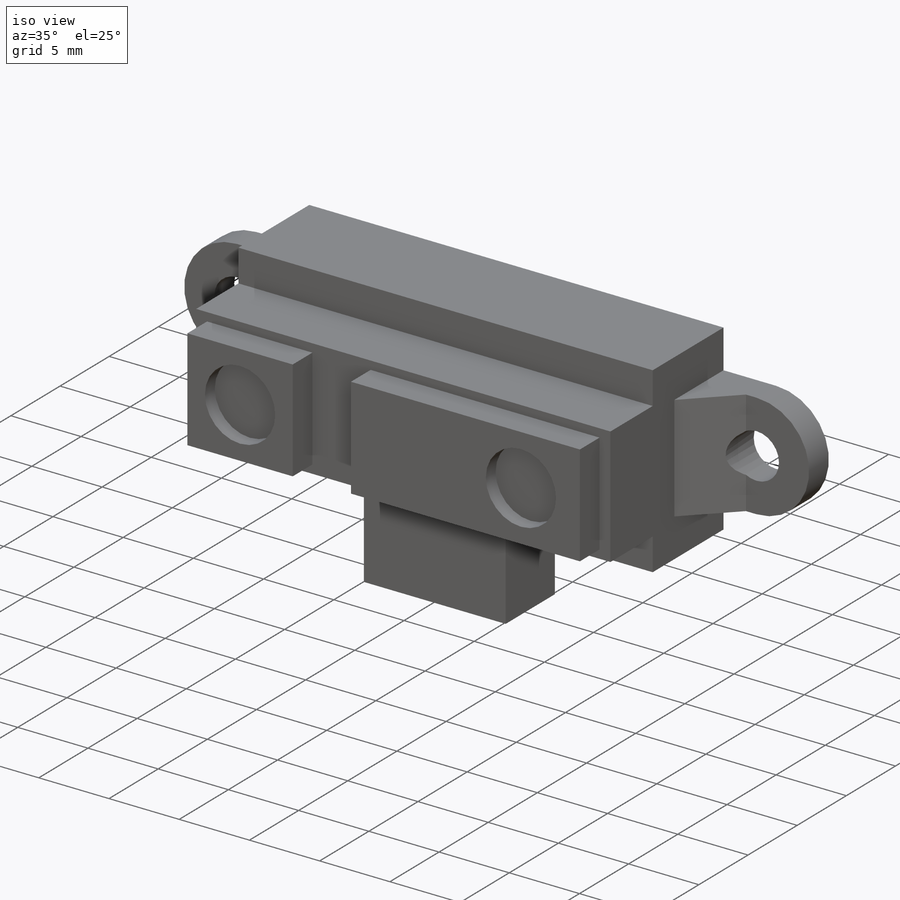
[diagram: iso view]
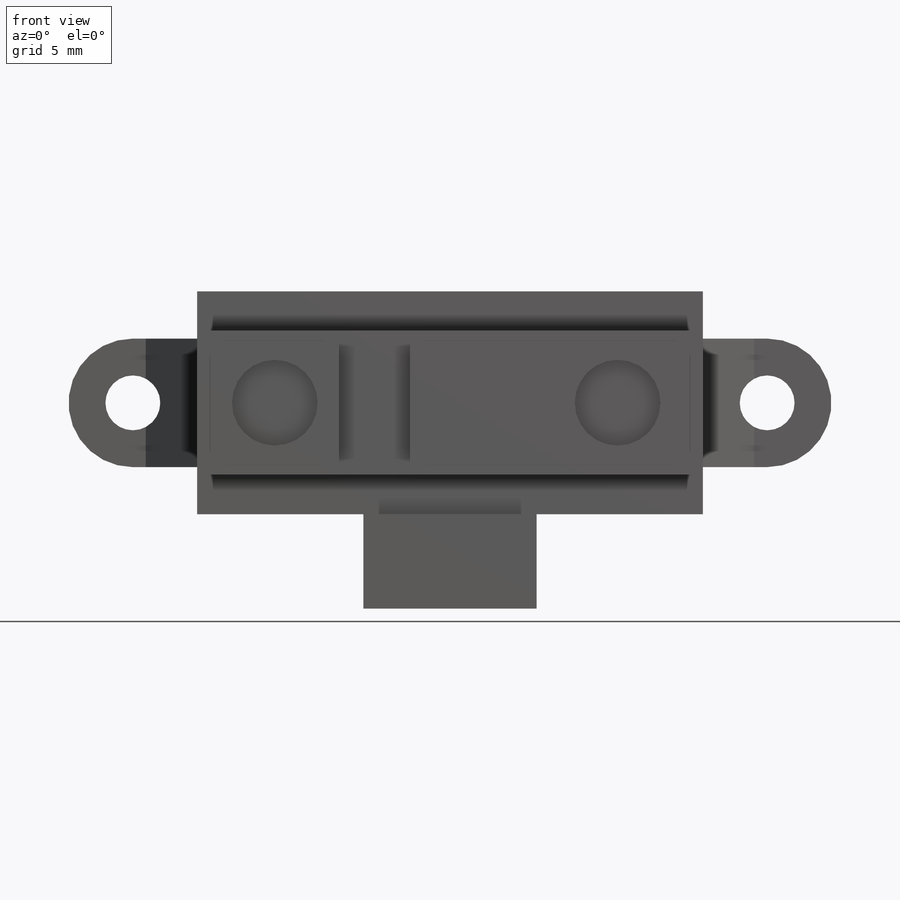
[diagram: front view]
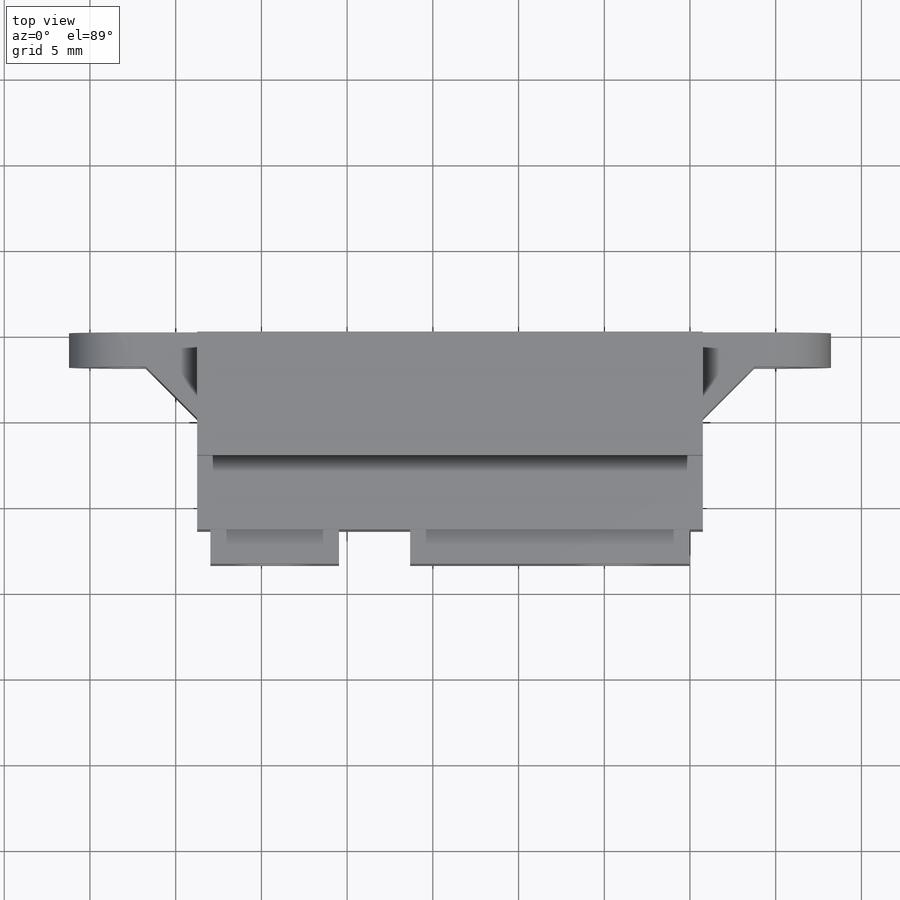
[diagram: top view]
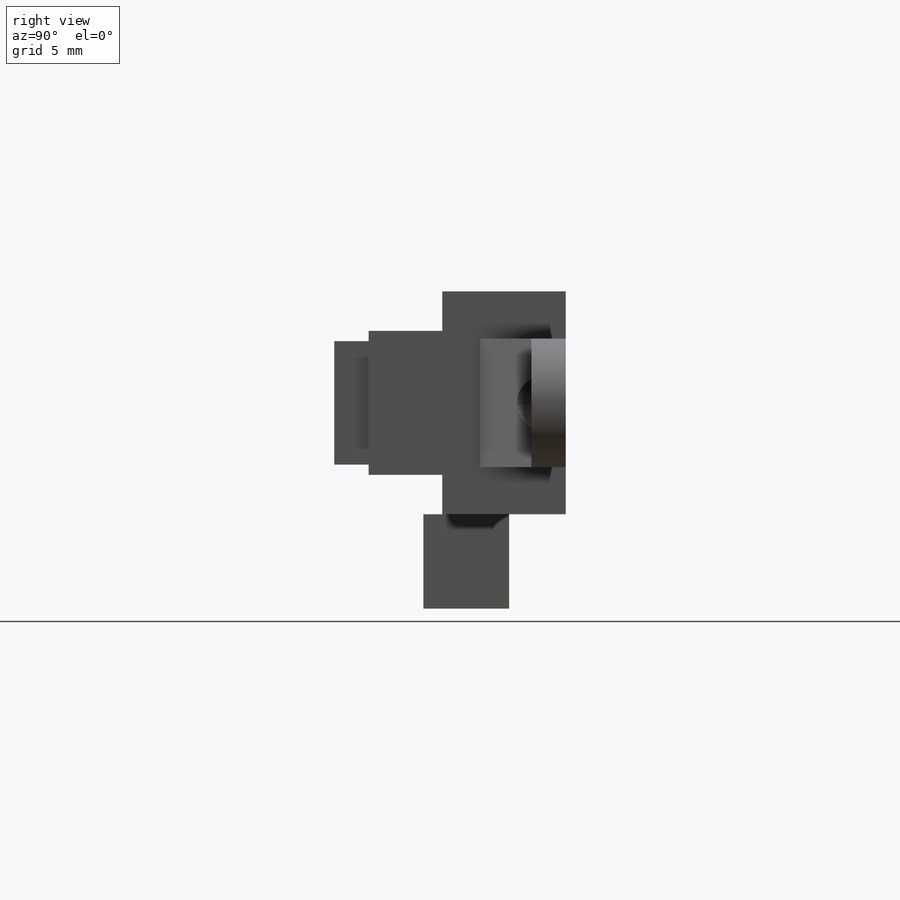
[diagram: right view]
SOLIDWORKS PART (.sldprt)
format: sldprt  version: not decoded by parser v0  size: 251,904 bytes
history: native  units: mm
features: sketch x6, extrude x5, material x1, chamfer x1, cut_extrude x1 (+12 scaffold rows collapsed)
feature tree (26):
  scaffold x12  (default folders/planes/origin — collapsed)
  material  "Material <not specified>"
  sketch  "Sketch1"  dims[D1=29.5mm D2=13.0mm]
  extrude  "Boss-Extrude1"  Depth=7.2mm
  sketch  "Sketch2"  dims[D1=29.5mm D2=8.4mm D3=0.0mm D4=29.5mm]
  extrude  "Boss-Extrude2"  Depth=4.3mm
  sketch  "Sketch3"  dims[D1=7.5mm D2=7.2mm D3=16.3mm D4=4.15mm D5=7.2mm]
  extrude  "Boss-Extrude3"  Depth=2mm
  sketch  "Sketch4"  dims[D1=7.5mm D3=3.2mm D2=37.0mm]
  extrude  "Boss-Extrude4"  Depth=2mm
  chamfer  "Chamfer1"  Distance=3mm Angle=45deg
  sketch  "Sketch5"  dims[D1=10.1mm D2=3.3mm D3=5.0mm]
  extrude  "Boss-Extrude5"  Depth=5.5mm
  sketch  "Sketch6"  dims[D1=5.0mm D2=3.75mm D3=20.0mm]
  cut_extrude  "Cut-Extrude1"  Depth=1mm
decode coverage: 13 of 13 modeling features carry decoded parameters
note: suppression state not decoded; provenance and decode notes live in map.json
